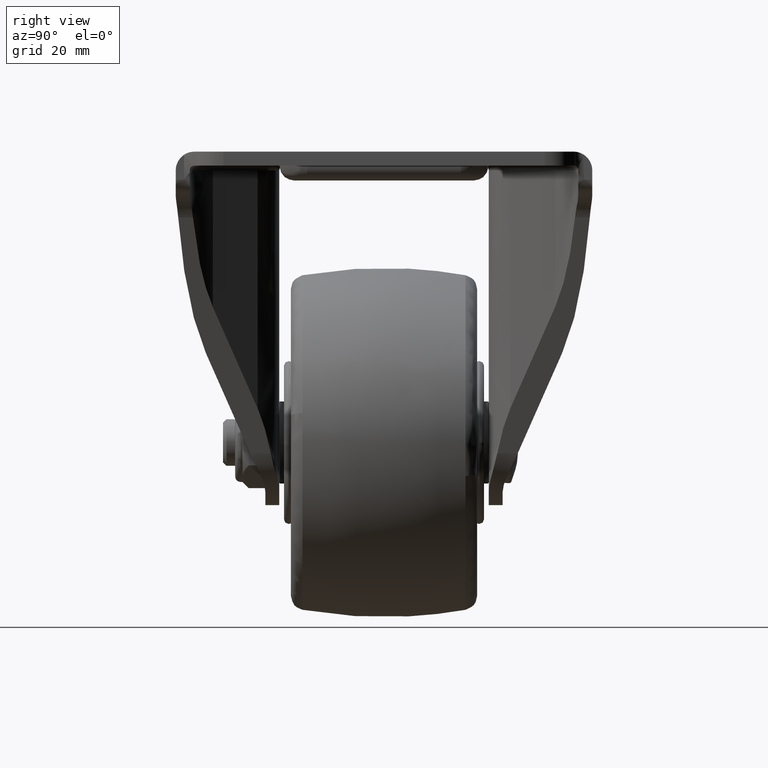
[diagram: clean part render]
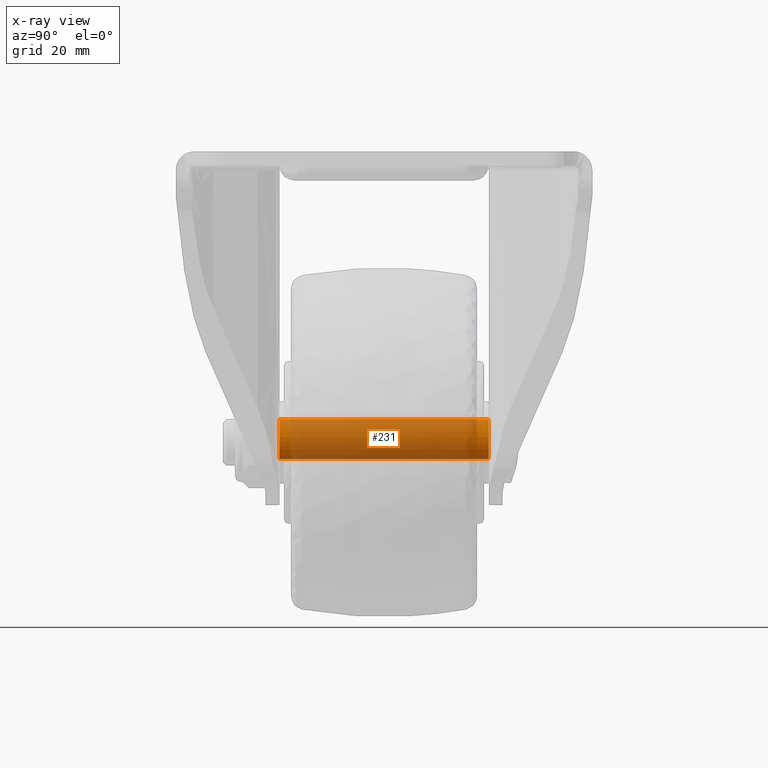
[diagram: x-ray — body ghosted, one internal face saturated and labeled with its STEP entity id]
A machine part, right view, then the same camera in x-ray: the body is ghosted and one INTERNAL B-rep face — a face not visible from any outside direction — is saturated and labeled: STEP entity #231.
In plain terms, the highlighted face is a freeform B-spline surface patch.
Its self-contained STEP definition (entity closure, byte-faithful):
#78=CARTESIAN_POINT('',(4.999999999999878,22.500000000000000,0.000001709542126));
#79=VERTEX_POINT('',#78);
#80=CARTESIAN_POINT('',(0.0,22.500000000000000,4.999999999999999));
#81=VERTEX_POINT('',#80);
#82=CARTESIAN_POINT('',(4.999999999999878,22.500000000000000,0.000001709542126));
#83=CARTESIAN_POINT('',(5.000109905123995,22.499999999999929,0.409075222181303));
#84=CARTESIAN_POINT('',(4.919202662031828,22.500000000000089,1.063513612120952));
#85=CARTESIAN_POINT('',(4.603986085816634,22.499999999999829,2.017742278497775));
#86=CARTESIAN_POINT('',(4.221573895894054,22.500000000000210,2.722705256142493));
#87=CARTESIAN_POINT('',(3.603879470371732,22.499999999999911,3.514351239898068));
#88=CARTESIAN_POINT('',(2.884995829990539,22.500000000000071,4.134470323522622));
#89=CARTESIAN_POINT('',(1.961566556730601,22.499999999999979,4.627901094578404));
#90=CARTESIAN_POINT('',(1.043079341819543,22.500000000000011,4.925110507789234));
#91=CARTESIAN_POINT('',(0.368160031773065,22.500000000000000,5.000069536525223));
#92=CARTESIAN_POINT('',(0.0,22.500000000000000,4.999999999999999));
#93=B_SPLINE_CURVE_WITH_KNOTS('',3,(#82,#83,#84,#85,#86,#87,#88,#89,#90,#91,#92),.UNSPECIFIED.,.F.,.U.,(4,1,1,1,1,1,1,1,4),(0.000000144985354,1.227191206566735,1.963508474844900,3.006644105916037,3.620236162574994,4.970104772759549,5.829162028772753,6.749561961489098,7.854029950854184),.UNSPECIFIED.);
#94=EDGE_CURVE('',#79,#81,#93,.T.);
#96=CARTESIAN_POINT('',(-3.441772543687197,22.499999999999819,3.626871584371707));
#97=VERTEX_POINT('',#96);
#98=CARTESIAN_POINT('',(0.0,22.500000000000000,4.999999999999999));
#99=CARTESIAN_POINT('',(-0.276796186454241,22.500000000000000,5.000011801356069));
#100=CARTESIAN_POINT('',(-0.889720000958894,22.499999999999929,4.949007248764565));
#101=CARTESIAN_POINT('',(-1.675606453093049,22.499999999999972,4.734112970741881));
#102=CARTESIAN_POINT('',(-2.576982172298399,22.499999999999790,4.323914116720393));
#103=CARTESIAN_POINT('',(-3.112019753449353,22.499999999999901,3.940045739482385));
#104=CARTESIAN_POINT('',(-3.441772543687197,22.499999999999819,3.626871584371707));
#105=B_SPLINE_CURVE_WITH_KNOTS('',3,(#98,#99,#100,#101,#102,#103,#104),.UNSPECIFIED.,.F.,.U.,(4,1,1,1,4),(0.000000033586045,0.830397461806609,1.838763701043238,2.431875693017581,3.796113162017399),.UNSPECIFIED.);
#106=EDGE_CURVE('',#81,#97,#105,.T.);
#134=CARTESIAN_POINT('',(3.441772543687184,22.499999999999819,-3.626871584372034));
#135=VERTEX_POINT('',#134);
#145=CARTESIAN_POINT('',(3.441772543687184,22.499999999999819,-3.626871584372034));
#146=CARTESIAN_POINT('',(3.825262850649507,22.499999999999879,-3.263329468280495));
#147=CARTESIAN_POINT('',(4.331994536279431,22.499999999999790,-2.600202702359871));
#148=CARTESIAN_POINT('',(4.868046522419345,22.500000000000050,-1.352458271307563));
#149=CARTESIAN_POINT('',(5.000315019817572,22.499999999999829,-0.528419795300184));
#150=CARTESIAN_POINT('',(4.999999999999878,22.500000000000000,0.000001709542126));
#151=B_SPLINE_CURVE_WITH_KNOTS('',3,(#145,#146,#147,#148,#149,#150),.UNSPECIFIED.,.F.,.U.,(4,1,1,4),(0.000000041351202,1.585138576740134,2.472780755486136,4.057919290916336),.UNSPECIFIED.);
#152=EDGE_CURVE('',#135,#79,#151,.T.);
#157=CARTESIAN_POINT('',(3.441772878468886,23.625000000000000,-3.626871855061731));
#158=CARTESIAN_POINT('',(7.068644733530447,23.625000000000004,-0.185098976592845));
#159=CARTESIAN_POINT('',(3.626871855061561,23.625000000000000,3.441772878468716));
#160=CARTESIAN_POINT('',(0.185098976592674,23.625000000000004,7.068644733530276));
#161=CARTESIAN_POINT('',(-3.441772878468886,23.625000000000000,3.626871855061390));
#162=CARTESIAN_POINT('',(3.441772878468886,-23.653124999999999,-3.626871855061731));
#163=CARTESIAN_POINT('',(7.068644733530447,-23.653124999999989,-0.185098976592845));
#164=CARTESIAN_POINT('',(3.626871855061561,-23.653124999999999,3.441772878468716));
#165=CARTESIAN_POINT('',(0.185098976592674,-23.653124999999989,7.068644733530276));
#166=CARTESIAN_POINT('',(-3.441772878468886,-23.653124999999999,3.626871855061390));
#174=(BOUNDED_SURFACE()B_SPLINE_SURFACE(2,1,((#157,#162),(#158,#163),(#159,#164),(#160,#165),(#161,#166)),.UNSPECIFIED.,.F.,.F.,.U.)B_SPLINE_SURFACE_WITH_KNOTS((3,2,3),(2,2),(0.0,8.284271247462181,16.568542494924358),(0.0,47.278125000000003),.UNSPECIFIED.)GEOMETRIC_REPRESENTATION_ITEM()RATIONAL_B_SPLINE_SURFACE(((1.0,1.0),(0.707106781186548,0.707106781186548),(1.0,1.0),(0.707106781186548,0.707106781186548),(1.0,1.0)))REPRESENTATION_ITEM('')SURFACE());
#175=ORIENTED_EDGE('',*,*,#152,.F.);
#176=CARTESIAN_POINT('',(3.441772544150749,-22.500000000000000,-3.626871583932129));
#177=VERTEX_POINT('',#176);
#178=CARTESIAN_POINT('',(3.441772543687184,22.499999999999819,-3.626871584372034));
#179=CARTESIAN_POINT('',(3.441772544150749,-22.500000000000000,-3.626871583932129));
#180=QUASI_UNIFORM_CURVE('',1,(#178,#179),.UNSPECIFIED.,.F.,.U.);
#181=EDGE_CURVE('',#135,#177,#180,.T.);
#182=ORIENTED_EDGE('',*,*,#181,.T.);
#183=CARTESIAN_POINT('',(4.999999999999878,-22.500000000000000,0.000001709542126));
#184=VERTEX_POINT('',#183);
#185=CARTESIAN_POINT('',(3.441772544150749,-22.500000000000000,-3.626871583932129));
#186=CARTESIAN_POINT('',(3.825244913046423,-22.500000000000039,-3.263328229162128));
#187=CARTESIAN_POINT('',(4.436092617354049,-22.499999999999989,-2.464217111292222));
#188=CARTESIAN_POINT('',(4.910914726004739,-22.500000000000021,-1.183559461427553));
#189=CARTESIAN_POINT('',(5.000026112832848,-22.499999999999989,-0.359287687083778));
#190=CARTESIAN_POINT('',(4.999999999999878,-22.500000000000000,0.000001709542126));
#191=B_SPLINE_CURVE_WITH_KNOTS('',3,(#185,#186,#187,#188,#189,#190),.UNSPECIFIED.,.F.,.U.,(4,1,1,4),(0.000000041351260,1.585138576490445,2.980033142035417,4.057919290277254),.UNSPECIFIED.);
#192=EDGE_CURVE('',#177,#184,#191,.T.);
#193=ORIENTED_EDGE('',*,*,#192,.T.);
#194=CARTESIAN_POINT('',(0.0,-22.500000000000000,4.999999999999999));
#195=VERTEX_POINT('',#194);
#196=CARTESIAN_POINT('',(4.999999999999878,-22.500000000000000,0.000001709542126));
#197=CARTESIAN_POINT('',(5.000109905123995,-22.499999999999929,0.409075222181303));
#198=CARTESIAN_POINT('',(4.919202662031828,-22.500000000000089,1.063513612120952));
#199=CARTESIAN_POINT('',(4.603986085816634,-22.499999999999829,2.017742278497775));
#200=CARTESIAN_POINT('',(4.221573895894054,-22.500000000000210,2.722705256142493));
#201=CARTESIAN_POINT('',(3.603879470371732,-22.499999999999911,3.514351239898068));
#202=CARTESIAN_POINT('',(2.884995829990539,-22.500000000000071,4.134470323522622));
#203=CARTESIAN_POINT('',(1.961566556730601,-22.499999999999979,4.627901094578404));
#204=CARTESIAN_POINT('',(1.043079341819543,-22.500000000000011,4.925110507789234));
#205=CARTESIAN_POINT('',(0.368160031773065,-22.500000000000000,5.000069536525223));
#206=CARTESIAN_POINT('',(0.0,-22.500000000000000,4.999999999999999));
#207=B_SPLINE_CURVE_WITH_KNOTS('',3,(#196,#197,#198,#199,#200,#201,#202,#203,#204,#205,#206),.UNSPECIFIED.,.F.,.U.,(4,1,1,1,1,1,1,1,4),(0.000000144985354,1.227191206566735,1.963508474844900,3.006644105916037,3.620236162574994,4.970104772759549,5.829162028772753,6.749561961489098,7.854029950854184),.UNSPECIFIED.);
#208=EDGE_CURVE('',#184,#195,#207,.T.);
#209=ORIENTED_EDGE('',*,*,#208,.T.);
#210=CARTESIAN_POINT('',(-3.441772544150761,-22.500000000000000,3.626871583931801));
#211=VERTEX_POINT('',#210);
#212=CARTESIAN_POINT('',(0.0,-22.500000000000000,4.999999999999999));
#213=CARTESIAN_POINT('',(-0.395437000277368,-22.500000000000028,5.000098938404129));
#214=CARTESIAN_POINT('',(-1.047832645099756,-22.499999999999972,4.922167300015223));
#215=CARTESIAN_POINT('',(-1.990768480319971,-22.500000000000028,4.615600796297780));
#216=CARTESIAN_POINT('',(-2.761288714653704,-22.500000000000021,4.202320705418390));
#217=CARTESIAN_POINT('',(-3.241002016071700,-22.500000000000000,3.817417160273219));
#218=CARTESIAN_POINT('',(-3.441772544150761,-22.500000000000000,3.626871583931801));
#219=B_SPLINE_CURVE_WITH_KNOTS('',3,(#212,#213,#214,#215,#216,#217,#218),.UNSPECIFIED.,.F.,.U.,(4,1,1,1,4),(0.000000033585136,1.186287847717695,1.957349494914219,2.965715734330053,3.796113162656484),.UNSPECIFIED.);
#220=EDGE_CURVE('',#195,#211,#219,.T.);
#221=ORIENTED_EDGE('',*,*,#220,.T.);
#222=CARTESIAN_POINT('',(-3.441772543687197,22.499999999999819,3.626871584371707));
#223=CARTESIAN_POINT('',(-3.441772544150761,-22.500000000000000,3.626871583931801));
#224=QUASI_UNIFORM_CURVE('',1,(#222,#223),.UNSPECIFIED.,.F.,.U.);
#225=EDGE_CURVE('',#97,#211,#224,.T.);
#226=ORIENTED_EDGE('',*,*,#225,.F.);
#227=ORIENTED_EDGE('',*,*,#106,.F.);
#228=ORIENTED_EDGE('',*,*,#94,.F.);
#229=EDGE_LOOP('',(#175,#182,#193,#209,#221,#226,#227,#228));
#230=FACE_OUTER_BOUND('',#229,.T.);
#231=ADVANCED_FACE('',(#230),#174,.F.);